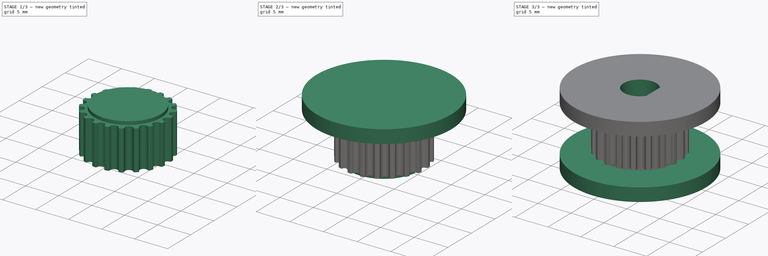
[diagram: build sequence overview — one tinted view per stage of 3, left to right]
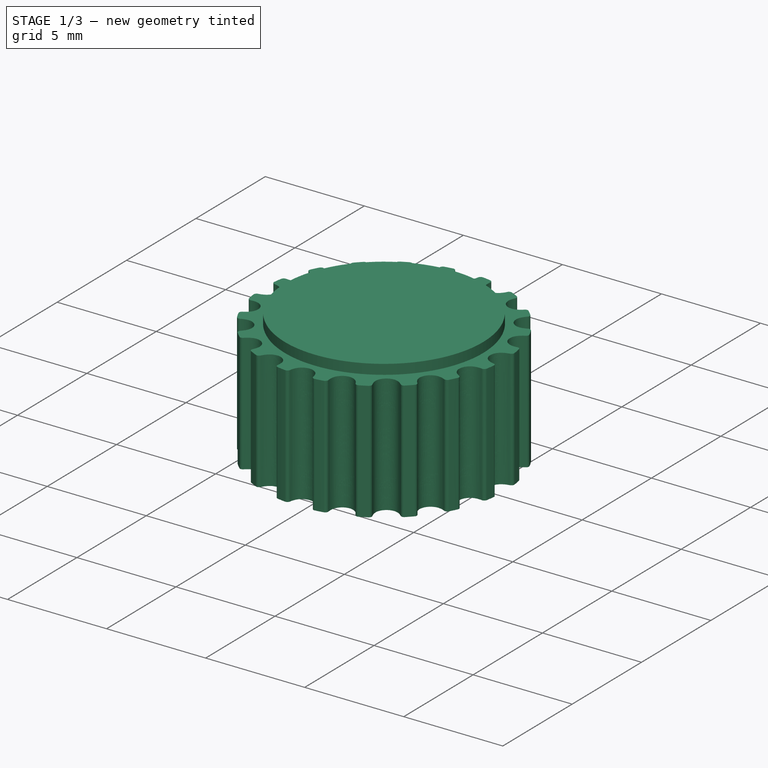
[diagram: stage 1 of 3 — iso view after this stage's code; geometry added in this stage tinted green]
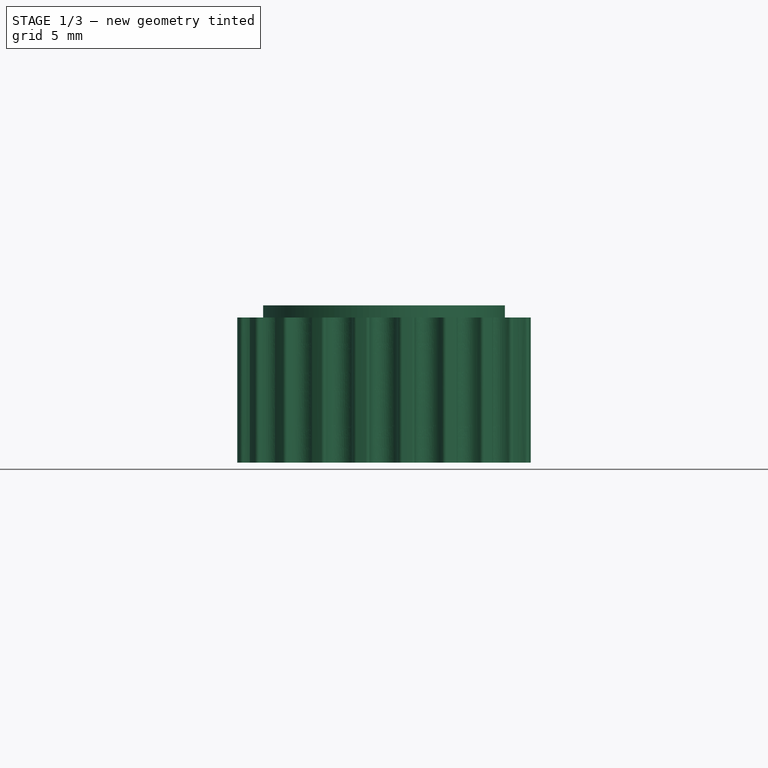
[diagram: stage 1 of 3 — front view after this stage's code; geometry added in this stage tinted green]
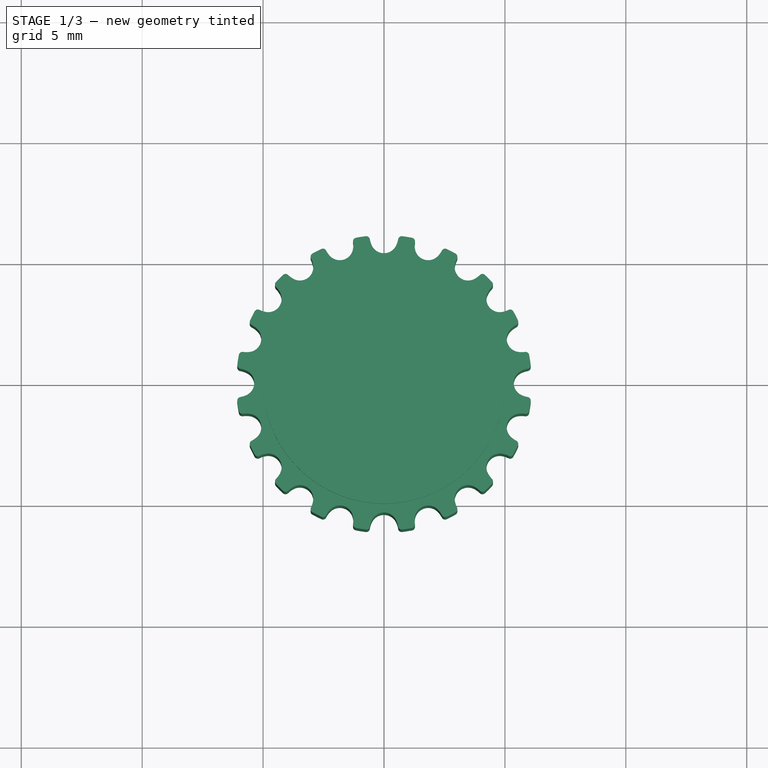
[diagram: stage 1 of 3 — top view after this stage's code; geometry added in this stage tinted green]
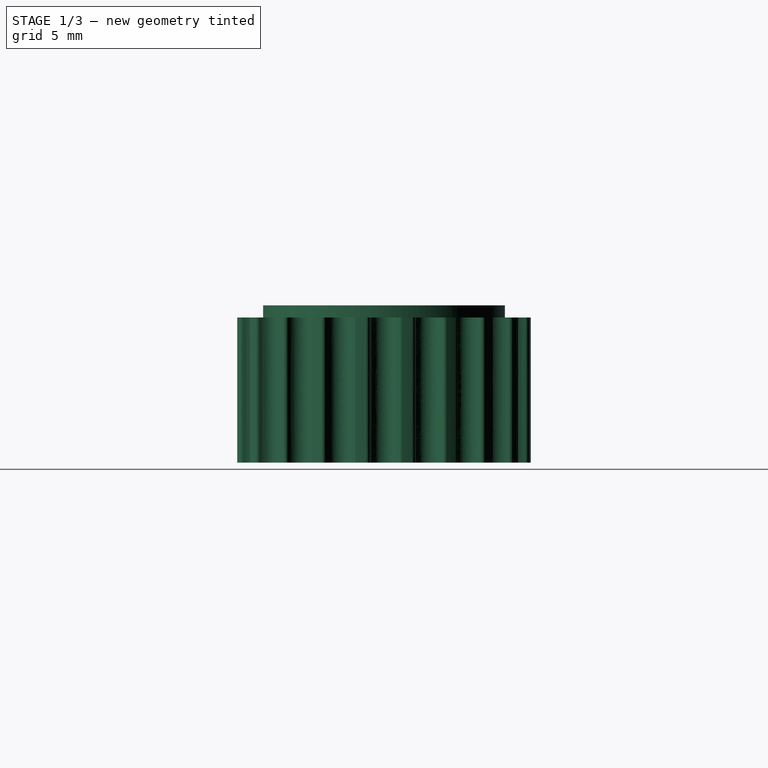
[diagram: stage 1 of 3 — right view after this stage's code; geometry added in this stage tinted green]
FCSTD DOCUMENT  (FreeCAD 0.20R29177 +426 (Git))
Label: gear20
License: All rights reserved
LicenseURL: http://en.wikipedia.org/wiki/All_rights_reserved
objects: Sketcher::SketchObject×5, PartDesign::Pad×4, Part::FeaturePython×2, PartDesign::CoordinateSystem×2, PartDesign::FeaturePython×1, PartDesign::Pocket×1, App::AnnotationLabel×1, App::DocumentObjectGroup×1, PartDesign::Body×1
note: 21 computed .brp shape members not serialized (recipe doc carries the construction recipe); baked Part::Feature solids carry a one-line shape summary decoded from their .brp

FEATURE [PartDesign::FeaturePython] TimingGear002  # WARN: FeaturePython — macro-defined, semantics opaque (R4)
  AttacherType = Attacher::AttachEngine3D
  h = 0.75
  height = 6
  num_teeth = 20
  offset = 0.4
  pitch = 2
  r0 = 0.555
  r1 = 1
  rs = 0.15
  type = 0
  u = 0.254
  version = 1.3.0
FEATURE [Sketcher::SketchObject] Sketch047
  FullyConstrained = true
  MapMode = 5
  Placement = pos=(0,0,6) rot=(0,0,1;0rad)
  Support = -> [TimingGear002]
  sketch-geometry (1):
    g0: Circle CenterX=0 CenterY=0 CenterZ=0 NormalX=0 NormalY=0 NormalZ=1 AngleXU=0 Radius=5
  constraints (2):
    c: Coincident(g0,g-1)
    c: Diameter(g0) = 10
FEATURE [PartDesign::Pad] Pad027
  BaseFeature = -> TimingGear002
  Direction = (0,0,1)
  Length = 0.5
  Length2 = 10
  Profile = -> Sketch047
  ReferenceAxis = -> Sketch047 [N_Axis]
  Refine = true
  Type = 0
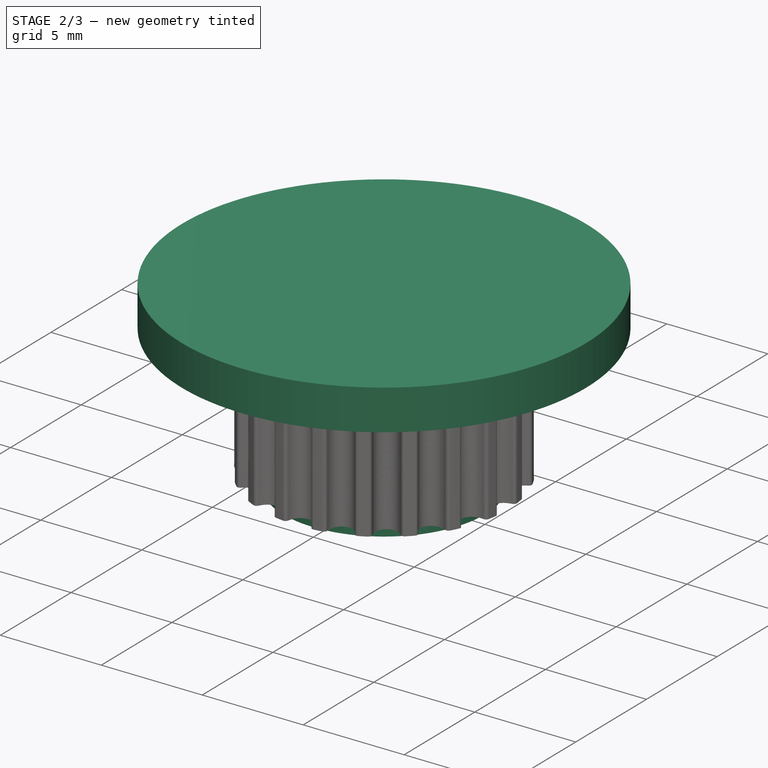
[diagram: stage 2 of 3 — iso view after this stage's code; geometry added in this stage tinted green]
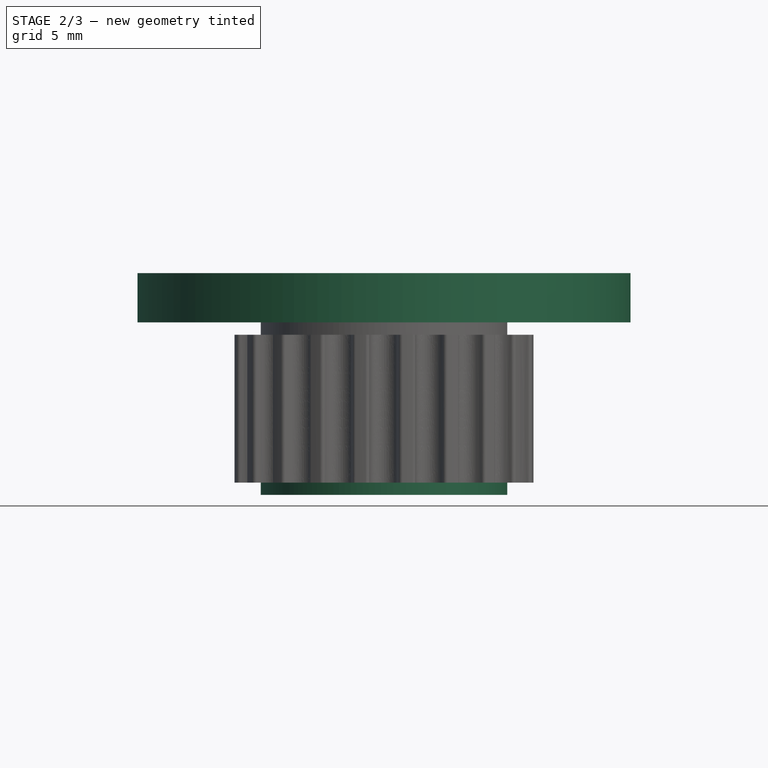
[diagram: stage 2 of 3 — front view after this stage's code; geometry added in this stage tinted green]
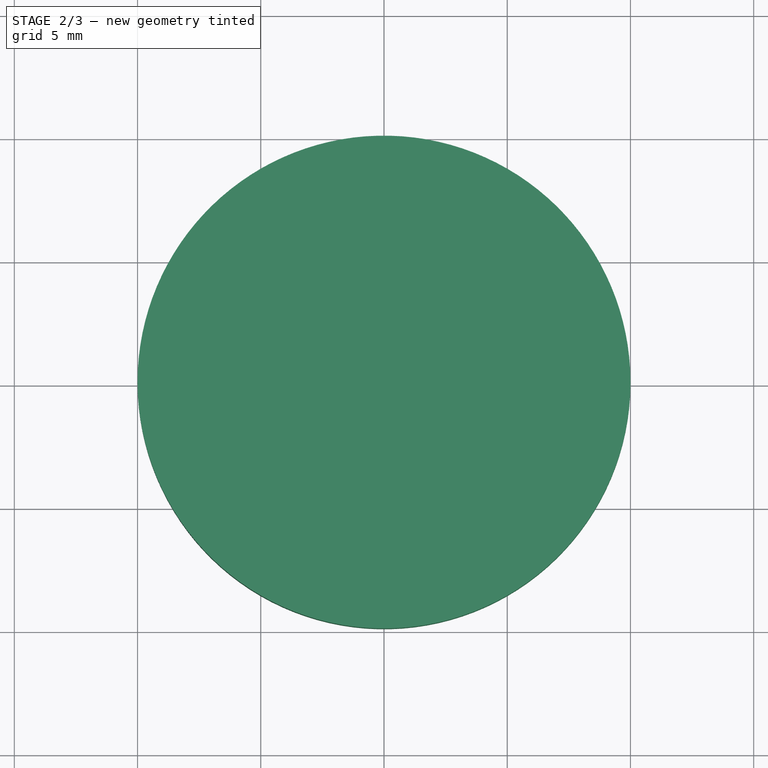
[diagram: stage 2 of 3 — top view after this stage's code; geometry added in this stage tinted green]
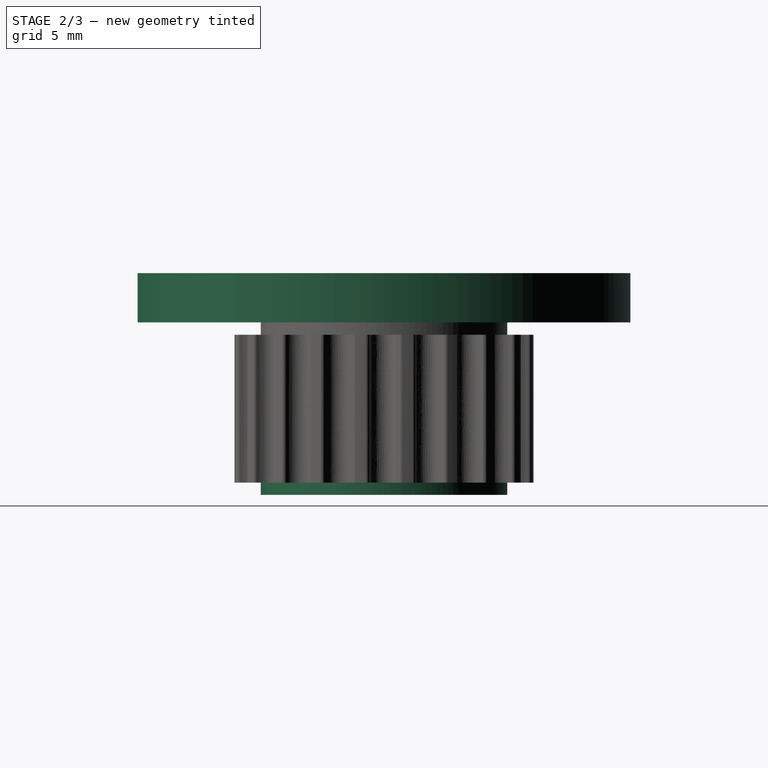
[diagram: stage 2 of 3 — right view after this stage's code; geometry added in this stage tinted green]
FEATURE [Sketcher::SketchObject] Sketch048
  FullyConstrained = true
  MapMode = 5
  Placement = pos=(0,0,6.5) rot=(0,0,1;0rad)
  Support = -> [Pad027]
  sketch-geometry (1):
    g0: Circle CenterX=0 CenterY=0 CenterZ=0 NormalX=0 NormalY=0 NormalZ=1 AngleXU=0 Radius=10
  constraints (2):
    c: Coincident(g0,g-1)
    c: Diameter(g0) = 20
FEATURE [PartDesign::Pad] Pad028
  BaseFeature = -> Pad027
  Direction = (0,0,1)
  Length = 2
  Length2 = 10
  Profile = -> Sketch048
  ReferenceAxis = -> Sketch048 [N_Axis]
  Refine = true
  Type = 0
FEATURE [Sketcher::SketchObject] Sketch049
  FullyConstrained = true
  MapMode = 5
  Placement = pos=(0,0,0) rot=(1,0,0;3.14159rad)
  Support = -> [Pad028]
  sketch-geometry (1):
    g0: Circle CenterX=0 CenterY=0 CenterZ=0 NormalX=0 NormalY=0 NormalZ=1 AngleXU=0 Radius=5
  constraints (2):
    c: Coincident(g0,g-1)
    c: Diameter(g0) = 10
FEATURE [PartDesign::Pad] Pad029
  BaseFeature = -> Pad028
  Direction = (0,0,-1)
  Length = 0.5
  Length2 = 10
  Profile = -> Sketch049
  ReferenceAxis = -> Sketch049 [N_Axis]
  Refine = true
  Type = 0
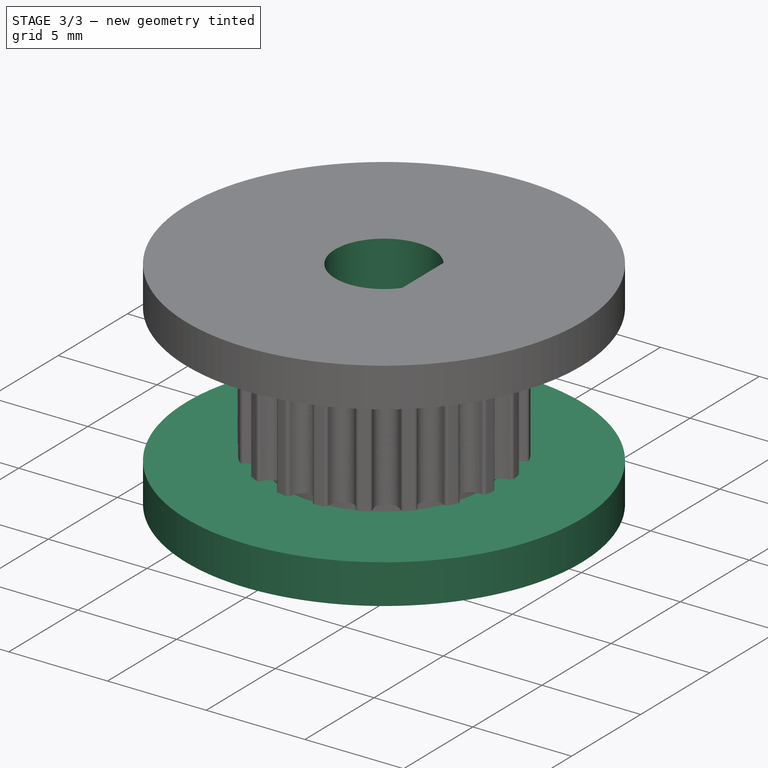
[diagram: stage 3 of 3 — iso view after this stage's code; geometry added in this stage tinted green]
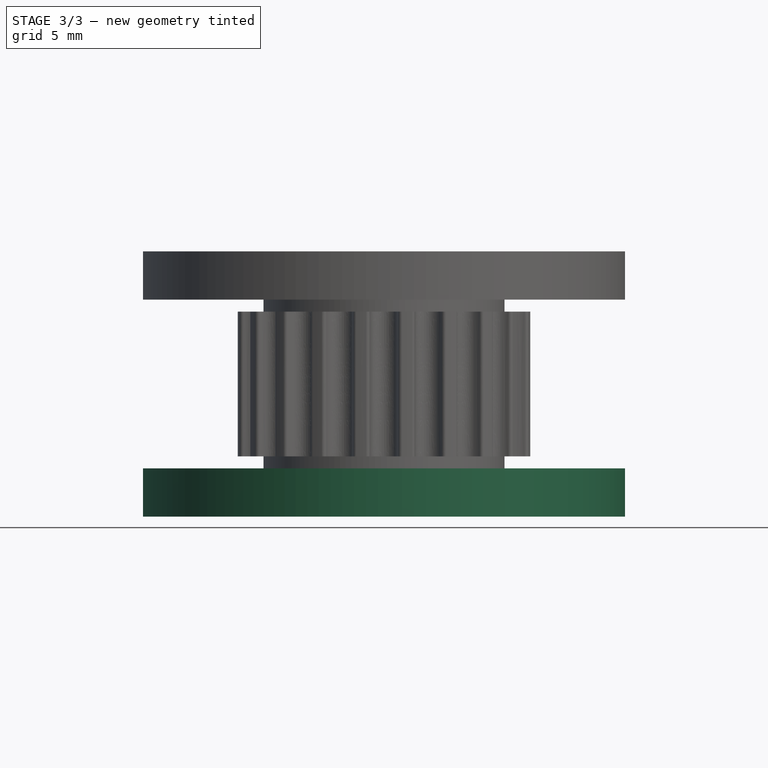
[diagram: stage 3 of 3 — front view after this stage's code; geometry added in this stage tinted green]
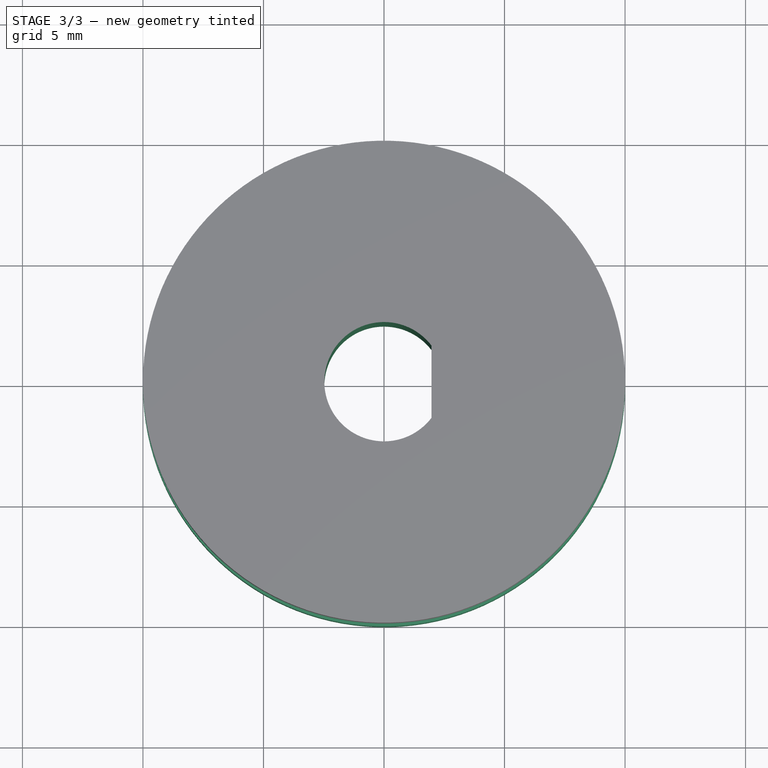
[diagram: stage 3 of 3 — top view after this stage's code; geometry added in this stage tinted green]
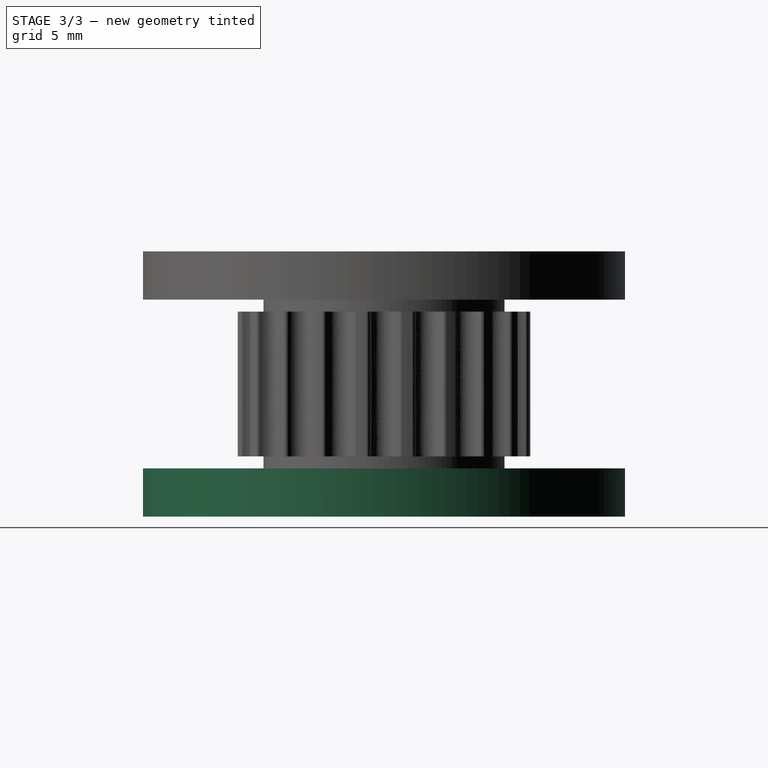
[diagram: stage 3 of 3 — right view after this stage's code; geometry added in this stage tinted green]
FEATURE [Sketcher::SketchObject] Sketch050
  FullyConstrained = true
  MapMode = 5
  Placement = pos=(0,0,-0.5) rot=(1,0,0;3.14159rad)
  Support = -> [Pad029]
  sketch-geometry (1):
    g0: Circle CenterX=0 CenterY=0 CenterZ=0 NormalX=0 NormalY=0 NormalZ=1 AngleXU=0 Radius=10
  constraints (2):
    c: Coincident(g0,g-1)
    c: Diameter(g0) = 20
FEATURE [PartDesign::Pad] Pad030
  BaseFeature = -> Pad029
  Direction = (0,0,-1)
  Length = 2
  Length2 = 10
  Profile = -> Sketch050
  ReferenceAxis = -> Sketch050 [N_Axis]
  Refine = true
  Type = 0
FEATURE [Sketcher::SketchObject] Sketch051
  FullyConstrained = true
  MapMode = 5
  Placement = pos=(0,0,8.5) rot=(0,0,1;0rad)
  Support = -> [Pad030]
  sketch-geometry (3):
    g0: ArcOfCircle CenterX=0 CenterY=0 CenterZ=0 NormalX=0 NormalY=0 NormalZ=1 AngleXU=0 Radius=2.475 StartAngle=0.651099 EndAngle=5.63209
    g1: LineSegment StartX=1.96866 StartY=0 StartZ=0 EndX=1.96866 EndY=1.5 EndZ=0
    g2: LineSegment StartX=1.96866 StartY=0 StartZ=0 EndX=1.96866 EndY=-1.5 EndZ=0
  constraints (9):
    c: Coincident(g0,g-1)
    c: Diameter(g0) = 4.95
    c: PointOnObject(g1,g-1)
    c: Vertical(g1)
    c: Vertical(g2)
    c: Coincident(g0,g1)
    c: Coincident(g0,g2)
    c: Coincident(g1,g2)
    c: DistanceY(g1,g1) = 1.5
FEATURE [PartDesign::Pocket] Pocket013
  BaseFeature = -> Pad030
  Direction = (0,0,-1)
  Length = 50
  Length2 = 5
  Profile = -> Sketch051
  ReferenceAxis = -> Sketch051 [N_Axis]
  Refine = true
  Type = 0
FEATURE [Part::FeaturePython] aCircle  # WARN: FeaturePython — macro-defined, semantics opaque (R4)
FEATURE [Part::FeaturePython] Radius  # WARN: FeaturePython — macro-defined, semantics opaque (R4)
FEATURE [App::AnnotationLabel] MeasureLbl
  BasePosition = (5,0,51.5)
  LabelText = R = 5,00 mm
  TextPosition = (0,0,0)
FEATURE [App::DocumentObjectGroup] Measures
  Group = -> [aCircle,Radius,MeasureLbl]
FEATURE [PartDesign::CoordinateSystem] LCS_belt
  AttacherType = Attacher::AttachEngine3D
  MapMode = 45
  Placement = pos=(2.37e-14,-1e-16,0) rot=(0,0,1;0rad)
  Support = -> [Pocket013]
FEATURE [PartDesign::CoordinateSystem] LCS_shaftStepper
  AttacherType = Attacher::AttachEngine3D
  MapMode = 11
  Placement = pos=(2e-16,4e-16,8.5) rot=(0,0,1;2.22189rad)
  Support = -> [Pocket013]
FEATURE [PartDesign::Body] Body005  label="gear20_body"
  Group = -> [TimingGear002,Sketch047,Pad027,Sketch048,Pad028,Sketch049,Pad029,Sketch050,Pad030,Sketch051,Pocket013,LCS_belt,LCS_shaftStepper]
  Origin = -> Origin005
  Placement = pos=(0,0,45) rot=(0,0,1;0rad)
  Tip = -> Pocket013
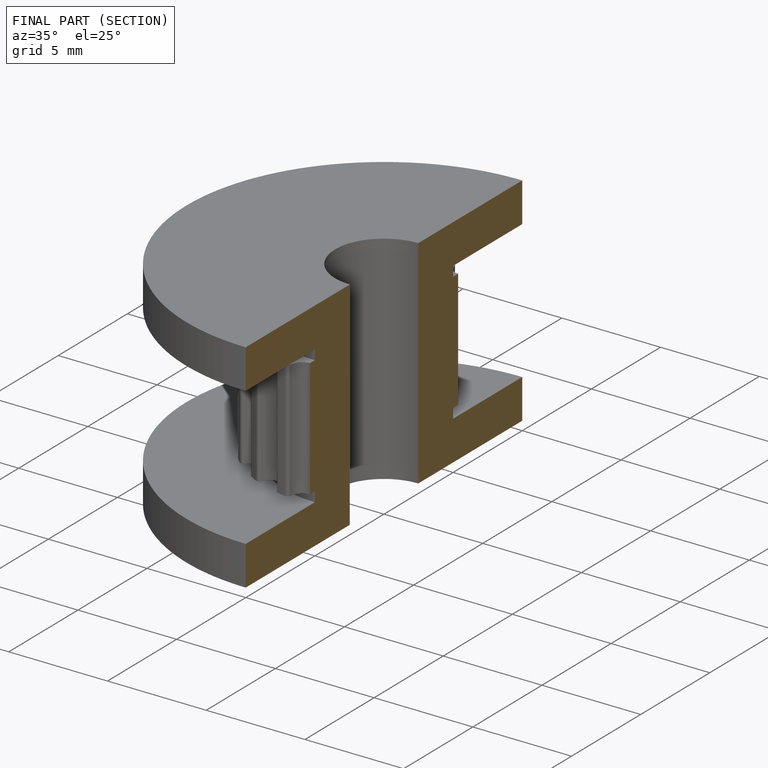
[diagram: finished part — half-section view (interior)]
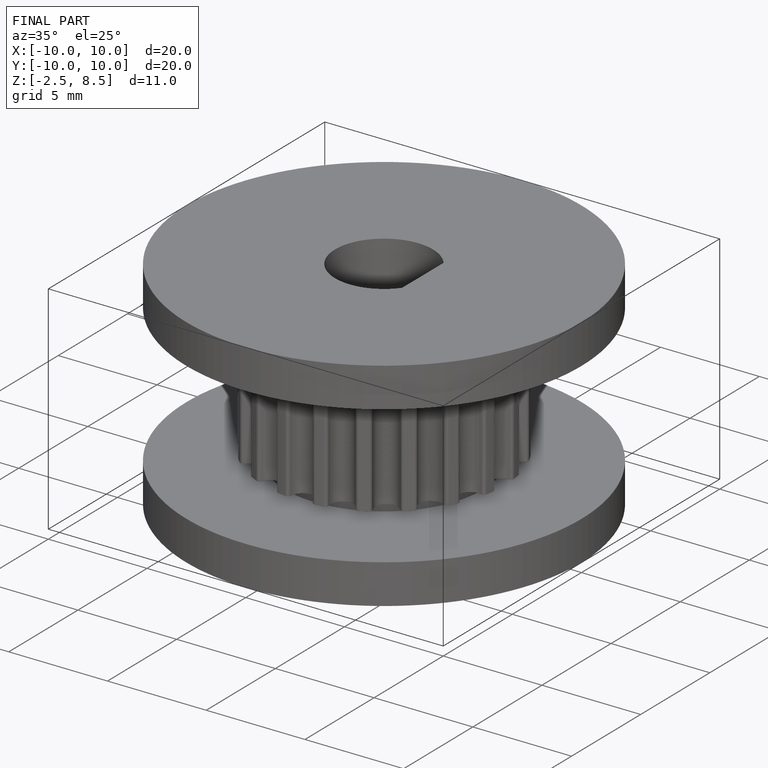
[diagram: finished part — iso view with bounding-box wireframe]
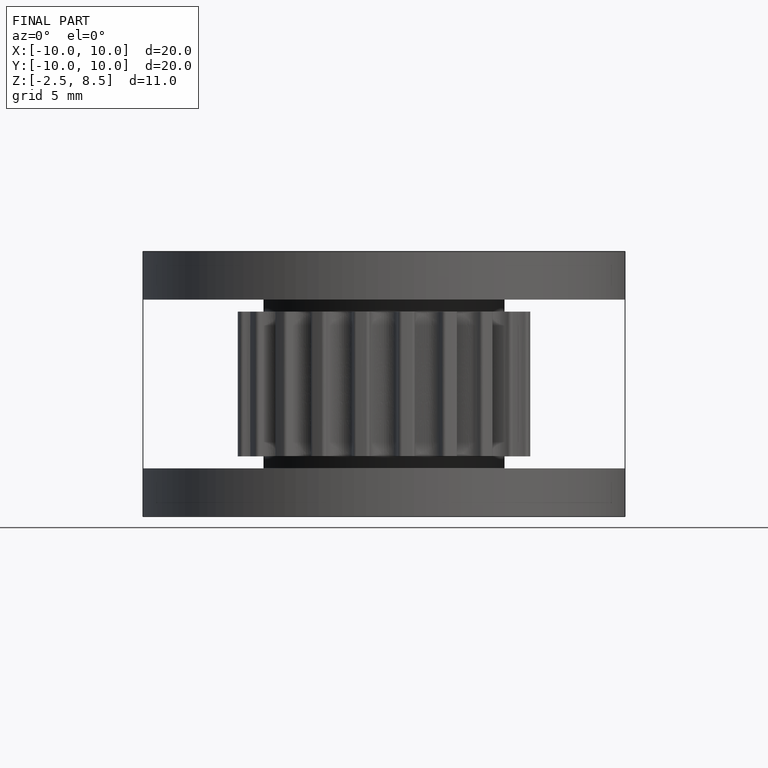
[diagram: finished part — front view with bounding-box wireframe]
